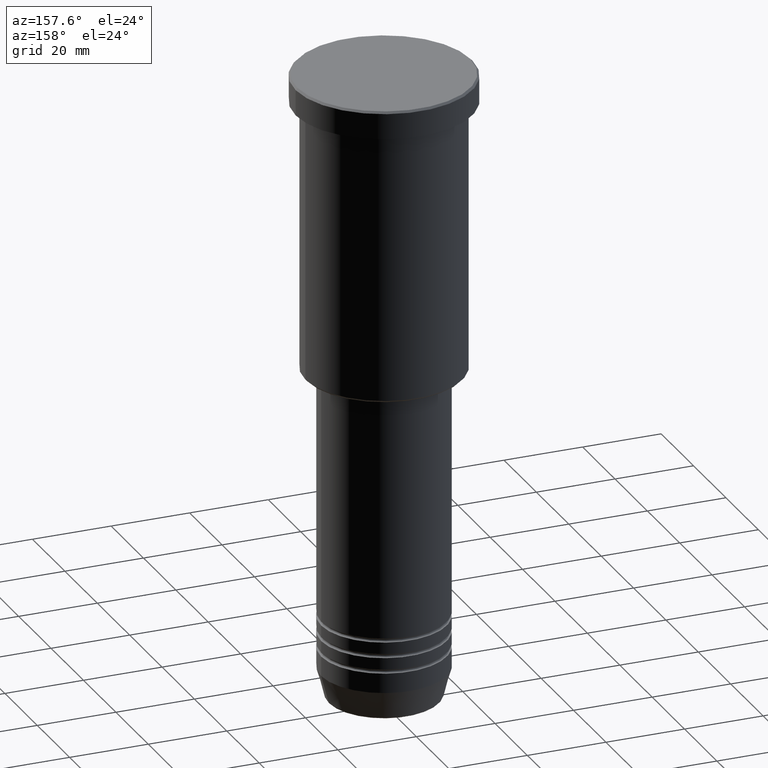
[diagram: clean part render]
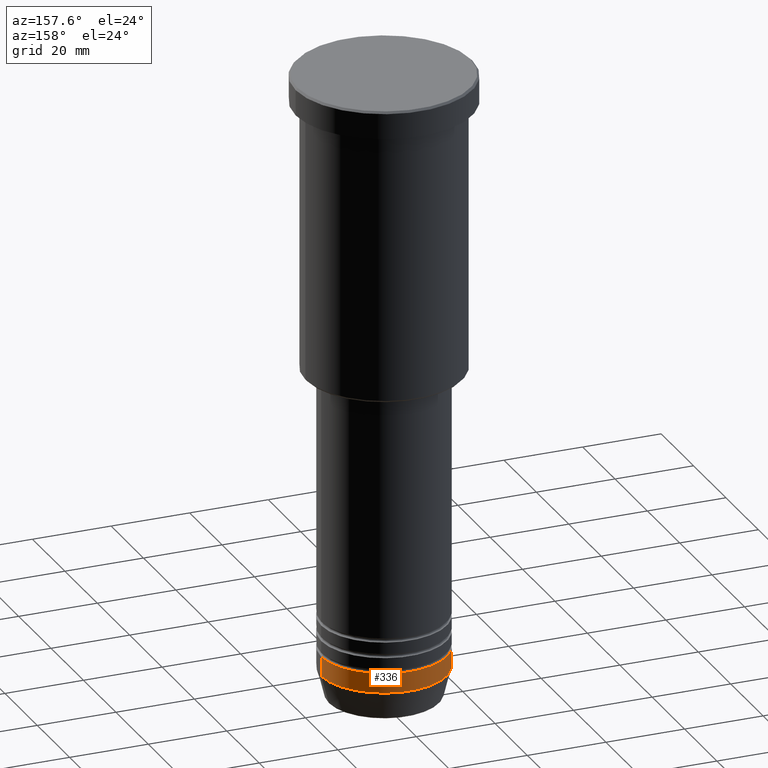
[diagram: same view with one face highlighted and labeled with its STEP entity id]
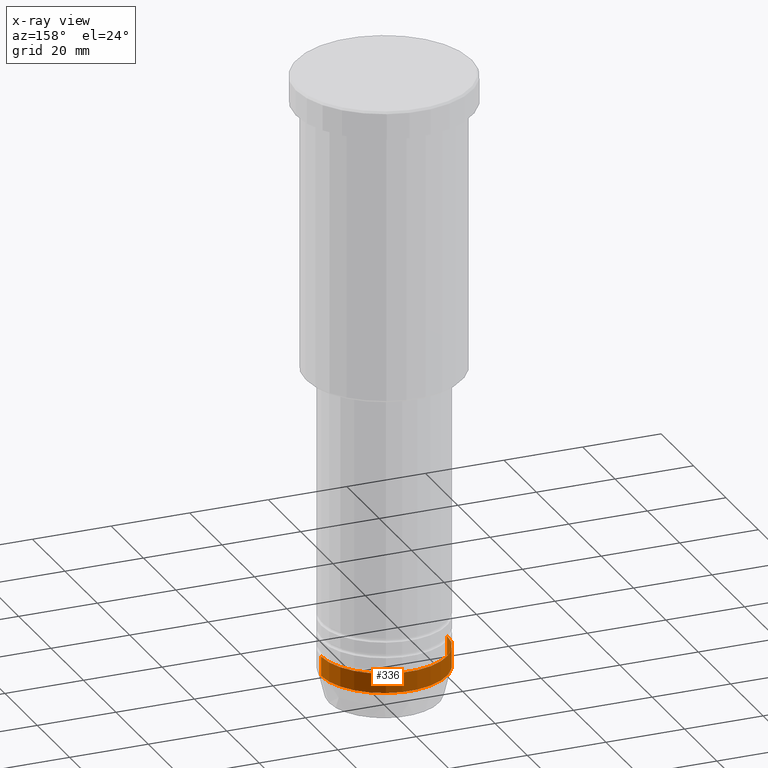
[diagram: x-ray of the same camera — body ghosted, the highlighted face saturated]
A machine part, auxiliary view. The second image highlights one B-rep face of the part: STEP entity #336.
The next image is the same camera in x-ray: the body ghosted, the highlighted face saturated — about 0% of this face is hidden behind the body in this view.
In plain terms, the highlighted cylindrical surface (partial cylindrical patch) has radius 16 mm, axis along (-0, -0, 1).
Its self-contained STEP definition (entity closure, byte-faithful):
#7 = AXIS2_PLACEMENT_3D ( 'NONE', #132, #36, #321 ) ;
#8 = VERTEX_POINT ( 'NONE', #710 ) ;
#13 = CARTESIAN_POINT ( 'NONE',  ( -16.00000000000000000, 1.959434878635765131E-15, -152.5000000000000000 ) ) ;
#31 = DIRECTION ( 'NONE',  ( 1.000000000000000000, 0.000000000000000000, 0.000000000000000000 ) ) ;
#36 = DIRECTION ( 'NONE',  ( -0.000000000000000000, -0.000000000000000000, 1.000000000000000000 ) ) ;
#71 = AXIS2_PLACEMENT_3D ( 'NONE', #855, #861, #31 ) ;
#132 = CARTESIAN_POINT ( 'NONE',  ( 0.000000000000000000, 0.000000000000000000, -152.5000000000000000 ) ) ;
#147 = LINE ( 'NONE', #1147, #519 ) ;
#202 = VERTEX_POINT ( 'NONE', #13 ) ;
#205 = CYLINDRICAL_SURFACE ( 'NONE', #71, 16.00000000000000000 ) ;
#226 = EDGE_CURVE ( 'NONE', #860, #202, #648, .T. ) ;
#298 = AXIS2_PLACEMENT_3D ( 'NONE', #1090, #748, #658 ) ;
#321 = DIRECTION ( 'NONE',  ( 1.000000000000000000, 0.000000000000000000, 0.000000000000000000 ) ) ;
#323 = VECTOR ( 'NONE', #705, 1000.000000000000000 ) ;
#336 = ADVANCED_FACE ( 'NONE', ( #490 ), #205, .T. ) ;
#422 = ORIENTED_EDGE ( 'NONE', *, *, #834, .T. ) ;
#426 = VERTEX_POINT ( 'NONE', #1131 ) ;
#487 = ORIENTED_EDGE ( 'NONE', *, *, #799, .F. ) ;
#490 = FACE_OUTER_BOUND ( 'NONE', #609, .T. ) ;
#519 = VECTOR ( 'NONE', #1067, 1000.000000000000000 ) ;
#522 = ORIENTED_EDGE ( 'NONE', *, *, #226, .T. ) ;
#524 = CARTESIAN_POINT ( 'NONE',  ( 16.00000000000000000, 0.000000000000000000, 0.000000000000000000 ) ) ;
#609 = EDGE_LOOP ( 'NONE', ( #522, #422, #712, #487 ) ) ;
#619 = EDGE_CURVE ( 'NONE', #426, #8, #900, .T. ) ;
#648 = CIRCLE ( 'NONE', #7, 16.00000000000000000 ) ;
#658 = DIRECTION ( 'NONE',  ( 1.000000000000000000, 0.000000000000000000, 0.000000000000000000 ) ) ;
#705 = DIRECTION ( 'NONE',  ( -0.000000000000000000, -0.000000000000000000, 1.000000000000000000 ) ) ;
#710 = CARTESIAN_POINT ( 'NONE',  ( -16.00000000000000000, 1.959434878635765131E-15, -147.5000000000000000 ) ) ;
#712 = ORIENTED_EDGE ( 'NONE', *, *, #619, .F. ) ;
#748 = DIRECTION ( 'NONE',  ( -0.000000000000000000, -0.000000000000000000, 1.000000000000000000 ) ) ;
#799 = EDGE_CURVE ( 'NONE', #860, #426, #1152, .T. ) ;
#834 = EDGE_CURVE ( 'NONE', #202, #8, #147, .T. ) ;
#855 = CARTESIAN_POINT ( 'NONE',  ( 0.000000000000000000, 0.000000000000000000, 0.000000000000000000 ) ) ;
#860 = VERTEX_POINT ( 'NONE', #998 ) ;
#861 = DIRECTION ( 'NONE',  ( -0.000000000000000000, -0.000000000000000000, 1.000000000000000000 ) ) ;
#900 = CIRCLE ( 'NONE', #298, 16.00000000000000000 ) ;
#998 = CARTESIAN_POINT ( 'NONE',  ( 16.00000000000000000, 0.000000000000000000, -152.5000000000000000 ) ) ;
#1067 = DIRECTION ( 'NONE',  ( -0.000000000000000000, -0.000000000000000000, 1.000000000000000000 ) ) ;
#1090 = CARTESIAN_POINT ( 'NONE',  ( 0.000000000000000000, 0.000000000000000000, -147.5000000000000000 ) ) ;
#1131 = CARTESIAN_POINT ( 'NONE',  ( 16.00000000000000000, 0.000000000000000000, -147.5000000000000000 ) ) ;
#1147 = CARTESIAN_POINT ( 'NONE',  ( -16.00000000000000000, 1.959434878635765131E-15, 0.000000000000000000 ) ) ;
#1152 = LINE ( 'NONE', #524, #323 ) ;